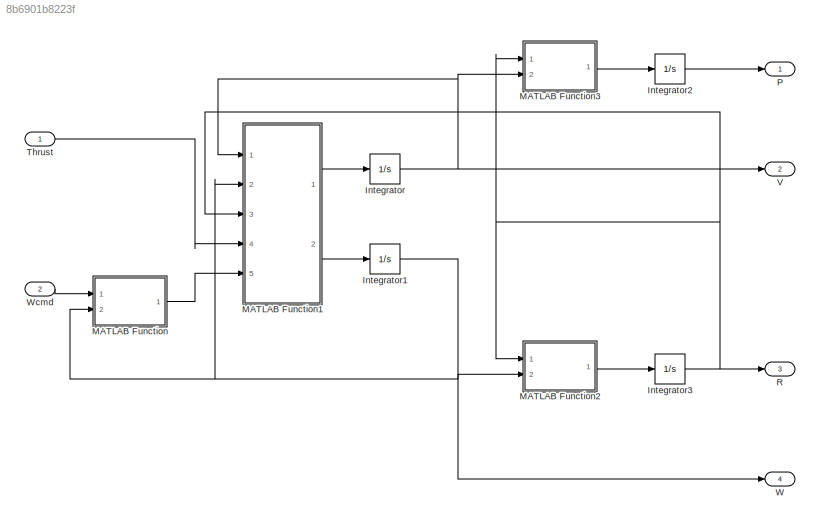
MODEL slx_8b6901b8223f
KIND model
CONFIG AbsTol = auto
CONFIG EnableMultiTasking = off
CONFIG FixedStep = auto
CONFIG MaxStep = auto
CONFIG MinStep = auto
CONFIG RelTol = 1e-3
CONFIG SampleTimeConstraint = Unconstrained
CONFIG SolverName = VariableStepAuto
CONFIG StartTime = 0.0
CONFIG StopTime = 100.0
BLOCK [Integrator] Integrator
  InitialCondition = [0;0;0]
  Ports = [1, 1]
BLOCK [Integrator] Integrator1
  InitialCondition = [0;0;0]
  Ports = [1, 1]
BLOCK [Integrator] Integrator2
  InitialCondition = [0;1;0]
  Ports = [1, 1]
BLOCK [Integrator] Integrator3
  InitialCondition = eye(3)
  Ports = [1, 1]
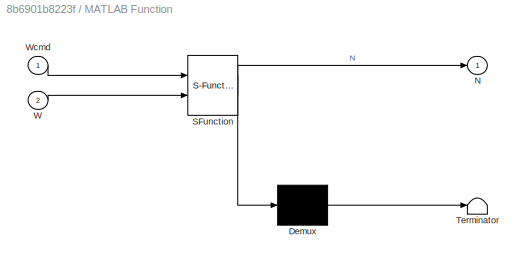
BLOCK [SubSystem] MATLAB Function
  ErrorFcn = Stateflow.Translate.translate
  PermitHierarchicalResolution = ExplicitOnly
  Ports = [2, 1]
  RequestExecContextInheritance = off
  SFBlockType = MATLAB Function
  TreatAsAtomicUnit = on
BLOCK [Demux] MATLAB Function/ Demux 
  Outputs = 1
  Ports = [1, 1]
BLOCK [S-Function] MATLAB Function/ SFunction 
  EnableBusSupport = on
  FunctionName = sf_sfun
  PortCounts = [2 2]
  Ports = [2, 2]
  SFcnIsStateOwnerBlock = off
  SFunctionDeploymentMode = off
  Tag = Stateflow S-Function 2
BLOCK [Terminator] MATLAB Function/ Terminator 
BLOCK [Outport] MATLAB Function/N
BLOCK [Inport] MATLAB Function/W
  Port = 2
BLOCK [Inport] MATLAB Function/Wcmd
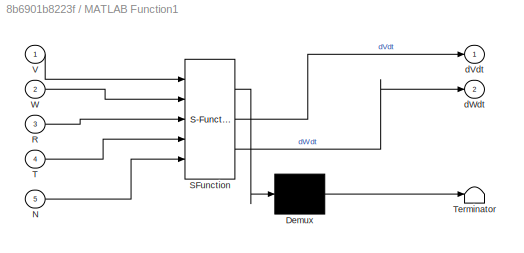
BLOCK [SubSystem] MATLAB Function1
  ErrorFcn = Stateflow.Translate.translate
  PermitHierarchicalResolution = ExplicitOnly
  Ports = [5, 2]
  RequestExecContextInheritance = off
  SFBlockType = MATLAB Function
  TreatAsAtomicUnit = on
BLOCK [Demux] MATLAB Function1/ Demux 
  Outputs = 1
  Ports = [1, 1]
BLOCK [S-Function] MATLAB Function1/ SFunction 
  EnableBusSupport = on
  FunctionName = sf_sfun
  Parameters = J,Jinv,g,m
  PortCounts = [5 3]
  Ports = [5, 3]
  SFcnIsStateOwnerBlock = off
  SFunctionDeploymentMode = off
  Tag = Stateflow S-Function 1
BLOCK [Terminator] MATLAB Function1/ Terminator 
BLOCK [Inport] MATLAB Function1/N
  Port = 5
BLOCK [Inport] MATLAB Function1/R
  Port = 3
BLOCK [Inport] MATLAB Function1/T
  Port = 4
BLOCK [Inport] MATLAB Function1/V
BLOCK [Inport] MATLAB Function1/W
  Port = 2
BLOCK [Outport] MATLAB Function1/dVdt
BLOCK [Outport] MATLAB Function1/dWdt
  Port = 2
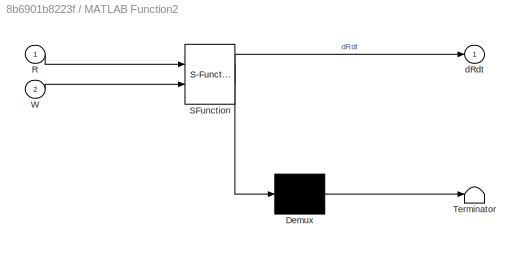
BLOCK [SubSystem] MATLAB Function2
  ErrorFcn = Stateflow.Translate.translate
  PermitHierarchicalResolution = ExplicitOnly
  Ports = [2, 1]
  RequestExecContextInheritance = off
  SFBlockType = MATLAB Function
  TreatAsAtomicUnit = on
BLOCK [Demux] MATLAB Function2/ Demux 
  Outputs = 1
  Ports = [1, 1]
BLOCK [S-Function] MATLAB Function2/ SFunction 
  EnableBusSupport = on
  FunctionName = sf_sfun
  PortCounts = [2 2]
  Ports = [2, 2]
  SFcnIsStateOwnerBlock = off
  SFunctionDeploymentMode = off
  Tag = Stateflow S-Function 3
BLOCK [Terminator] MATLAB Function2/ Terminator 
BLOCK [Inport] MATLAB Function2/R
BLOCK [Inport] MATLAB Function2/W
  Port = 2
BLOCK [Outport] MATLAB Function2/dRdt
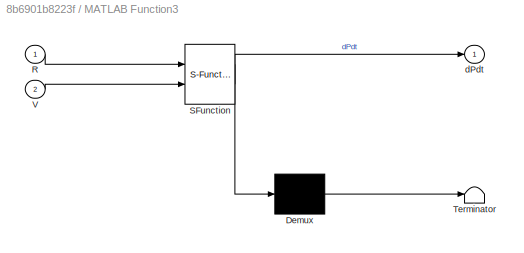
BLOCK [SubSystem] MATLAB Function3
  ErrorFcn = Stateflow.Translate.translate
  PermitHierarchicalResolution = ExplicitOnly
  Ports = [2, 1]
  RequestExecContextInheritance = off
  SFBlockType = MATLAB Function
  TreatAsAtomicUnit = on
BLOCK [Demux] MATLAB Function3/ Demux 
  Outputs = 1
  Ports = [1, 1]
BLOCK [S-Function] MATLAB Function3/ SFunction 
  EnableBusSupport = on
  FunctionName = sf_sfun
  PortCounts = [2 2]
  Ports = [2, 2]
  SFcnIsStateOwnerBlock = off
  SFunctionDeploymentMode = off
  Tag = Stateflow S-Function 4
BLOCK [Terminator] MATLAB Function3/ Terminator 
BLOCK [Inport] MATLAB Function3/R
BLOCK [Inport] MATLAB Function3/V
  Port = 2
BLOCK [Outport] MATLAB Function3/dPdt
BLOCK [Outport] P
BLOCK [Outport] R
  Port = 3
BLOCK [Inport] Thrust
BLOCK [Outport] V
  Port = 2
BLOCK [Outport] W
  Port = 4
BLOCK [Inport] Wcmd
  Port = 2
NET Integrator1:1 -> MATLAB Function1:2, MATLAB Function2:2, MATLAB Function:2, W:1
LINE Integrator2:1 -> P:1
NET Integrator3:1 -> MATLAB Function1:3, MATLAB Function2:1, MATLAB Function3:1, R:1
NET Integrator:1 -> MATLAB Function1:1, MATLAB Function3:2, V:1
LINE MATLAB Function1:1 -> Integrator:1
LINE MATLAB Function1:2 -> Integrator1:1
LINE MATLAB Function2:1 -> Integrator3:1
LINE MATLAB Function3:1 -> Integrator2:1
LINE MATLAB Function:1 -> MATLAB Function1:5
LINE Thrust:1 -> MATLAB Function1:4
LINE Wcmd:1 -> MATLAB Function:1
note: NET lines group one-source signal fan-out (src -> all destinations, sorted); 1:1 wires keep LINE
CHART MATLAB Function1 states=1 transitions=1
  STATE_LABEL 'eML_blk_kernel()'
  STATE_LABEL "SCRIPT:\nfunction [dVdt,dWdt]=QDyanamics(V,W,R,T,N,Jinv, m, g, J)\ndVdt=-Skew(W)*V+1/m*([0;0;-T]+R'*[0;0;m*g]);\ndWdt=Jinv*Skew(W)*J*W+Jinv*N;\nend\n\n"
CHART MATLAB Function states=1 transitions=1
  STATE_LABEL 'eML_blk_kernel()'
  STATE_LABEL 'SCRIPT:\nfunction N = Wcontorl(Wcmd,W)\nN=1000*(Wcmd-W);\nend'
CHART MATLAB Function2 states=1 transitions=1
  STATE_LABEL 'eML_blk_kernel()'
  STATE_LABEL 'SCRIPT:\nfunction dRdt=dRdt(R,W)\ndRdt=R*Skew(W);\nend\n'
CHART MATLAB Function3 states=1 transitions=1
  STATE_LABEL 'eML_blk_kernel()'
  STATE_LABEL 'SCRIPT:\nfunction dPdt=dPdt(R,V)\ndPdt=R*V;\nend\n'
CHART  states=0 transitions=0
CHART  states=0 transitions=0
CHART  states=0 transitions=0
CHART  states=0 transitions=0
